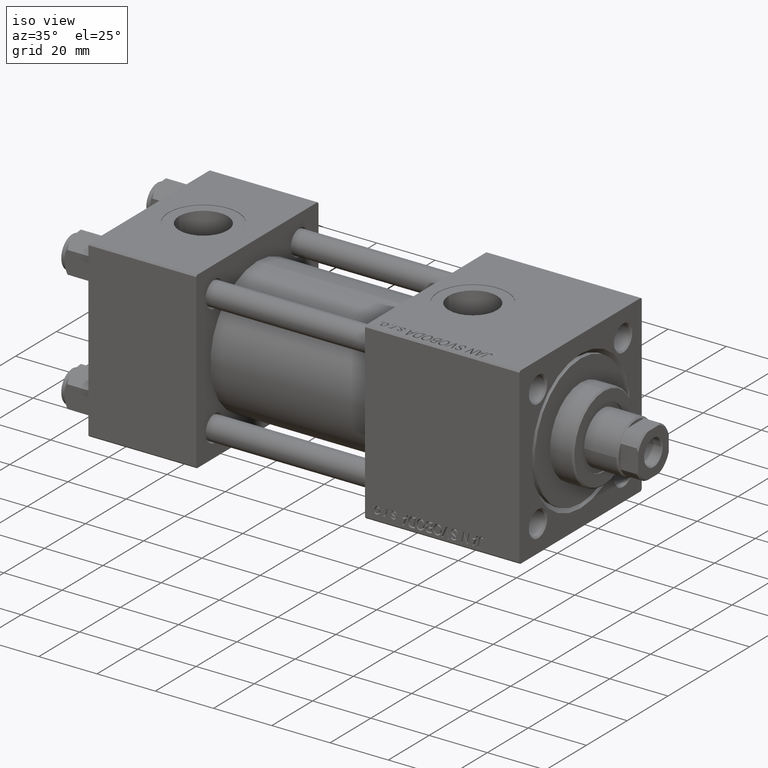
[diagram: clean part render]
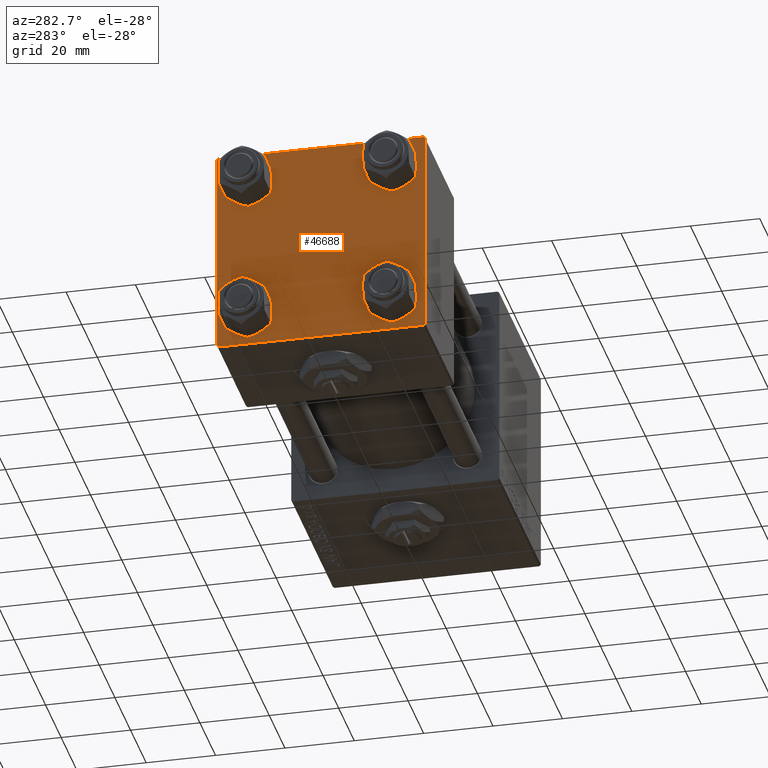
[diagram: tour spotlight — one face highlighted and labeled with its STEP entity id]
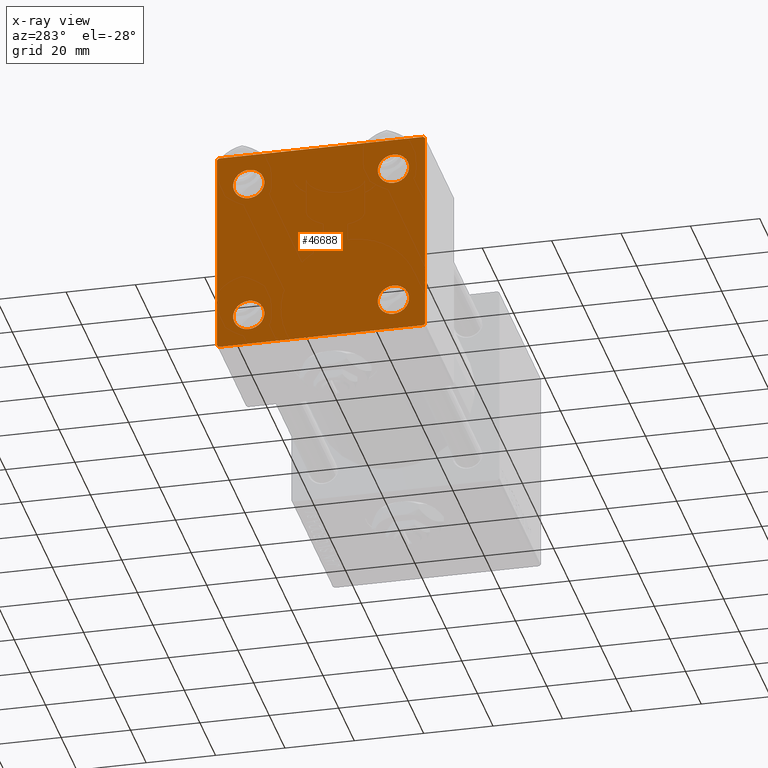
[diagram: x-ray of the same camera — body ghosted, this tour face saturated]
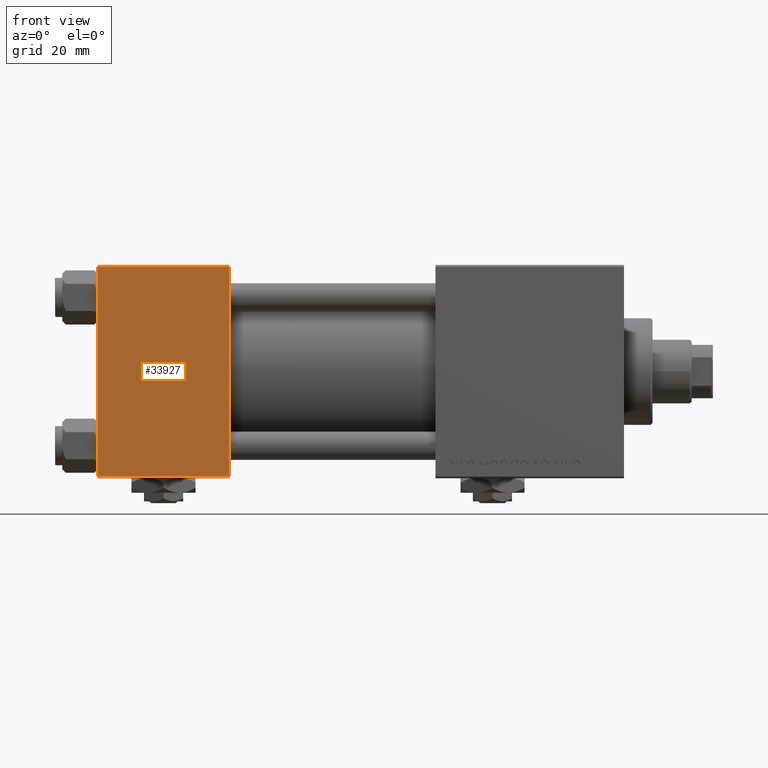
[diagram: tour spotlight — one face highlighted and labeled with its STEP entity id]
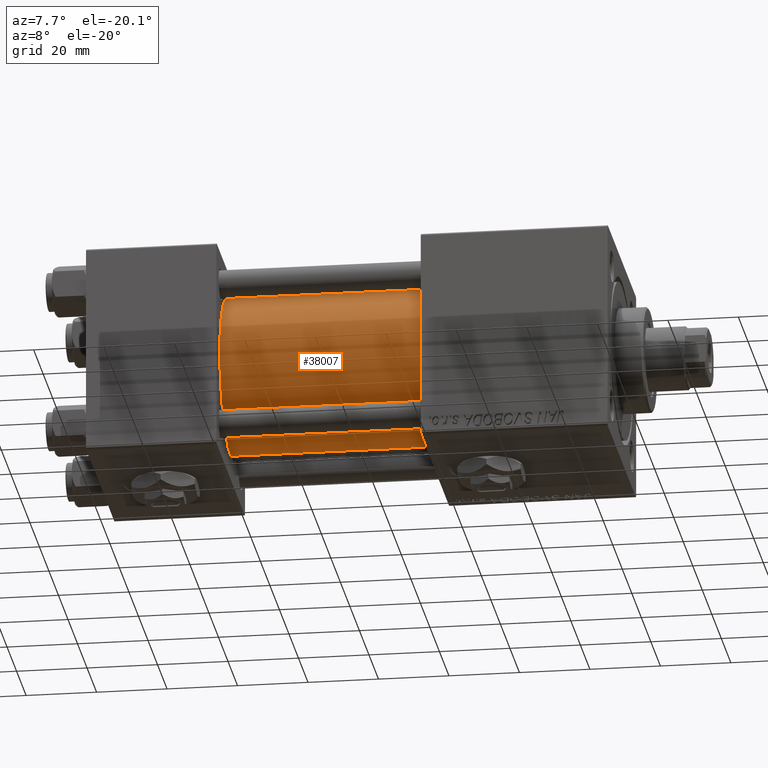
[diagram: tour spotlight — one face highlighted and labeled with its STEP entity id]
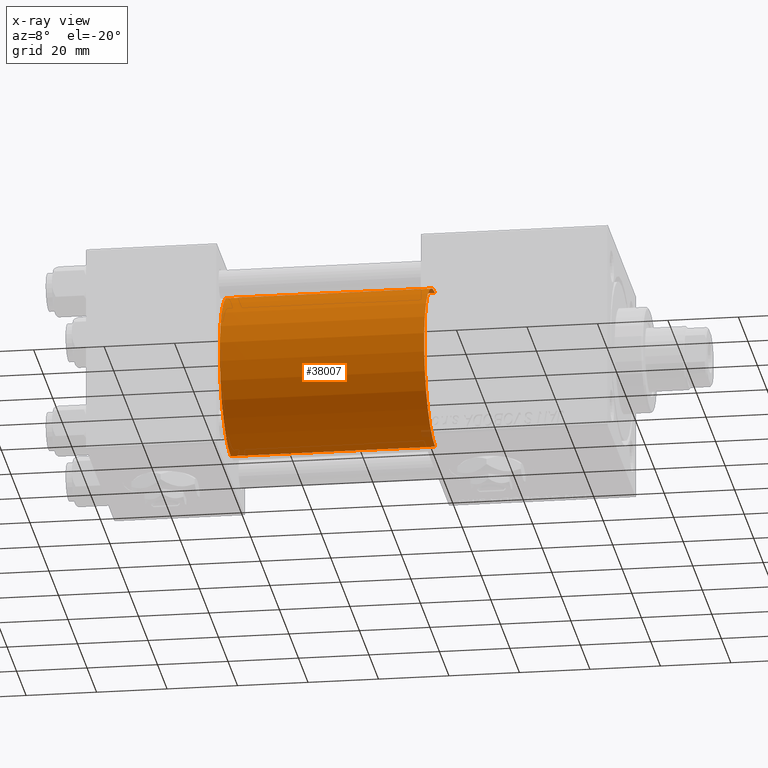
[diagram: x-ray of the same camera — body ghosted, this tour face saturated]
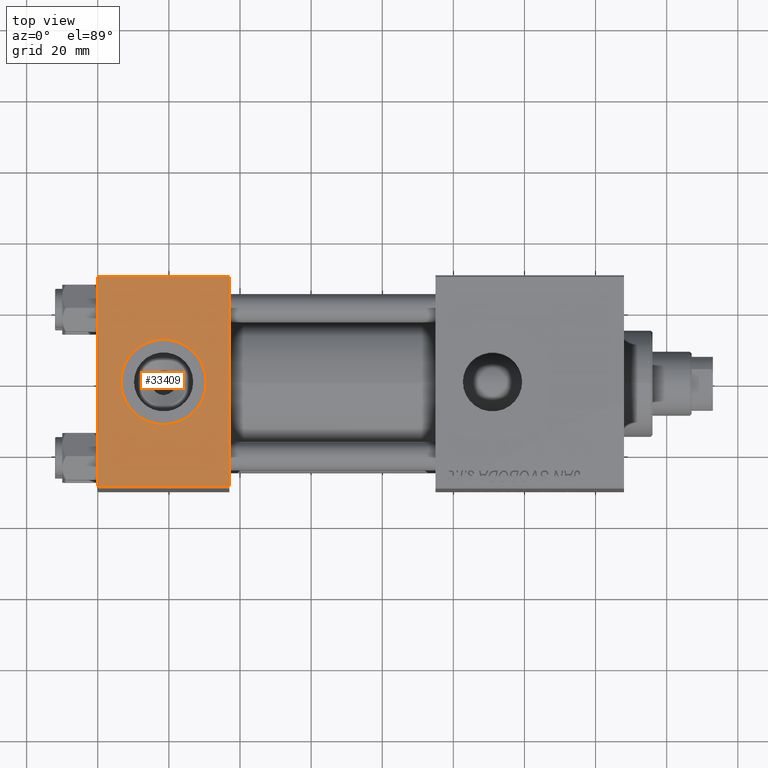
[diagram: tour spotlight — one face highlighted and labeled with its STEP entity id]
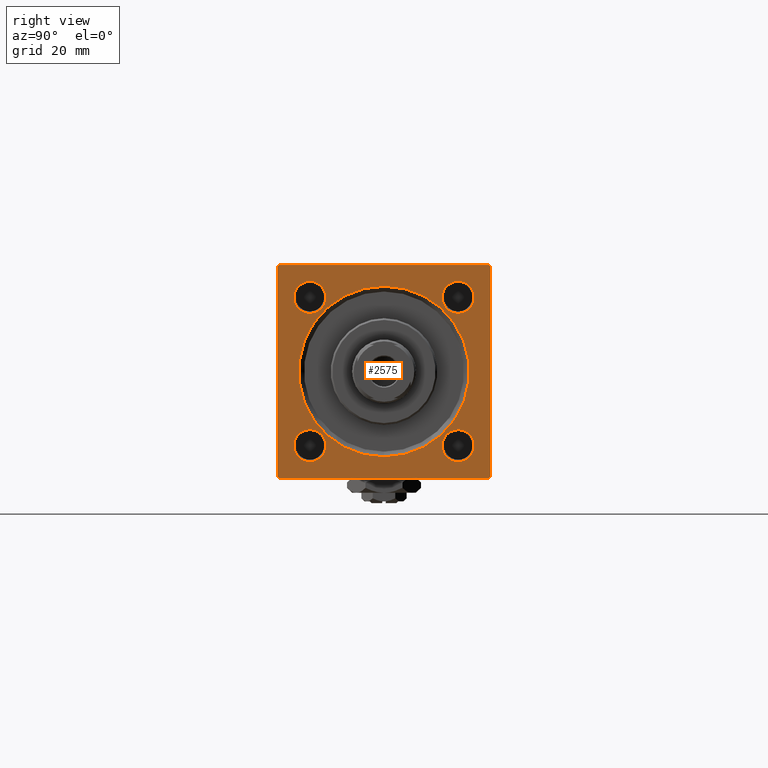
[diagram: tour spotlight — one face highlighted and labeled with its STEP entity id]
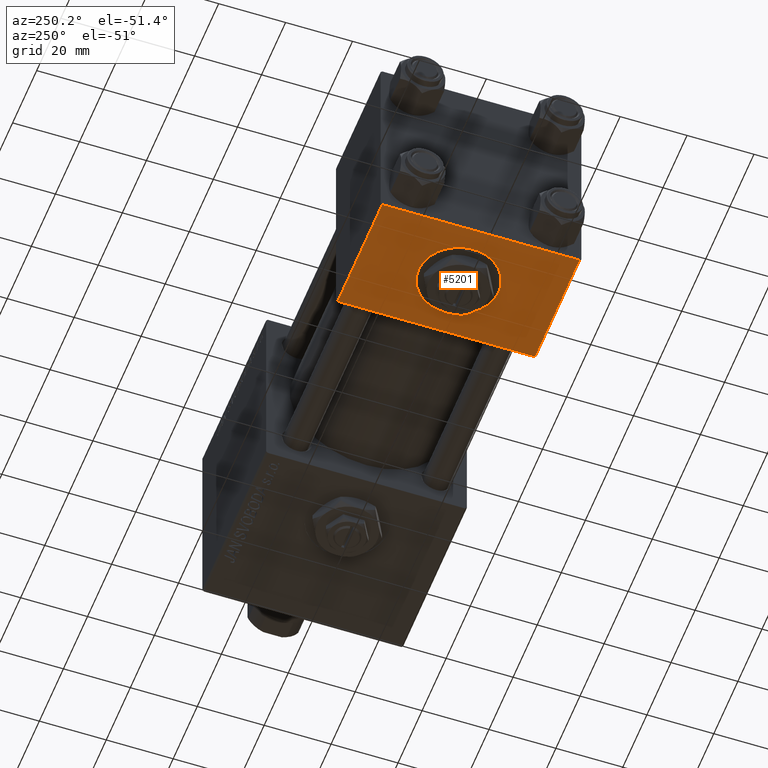
[diagram: tour spotlight — one face highlighted and labeled with its STEP entity id]
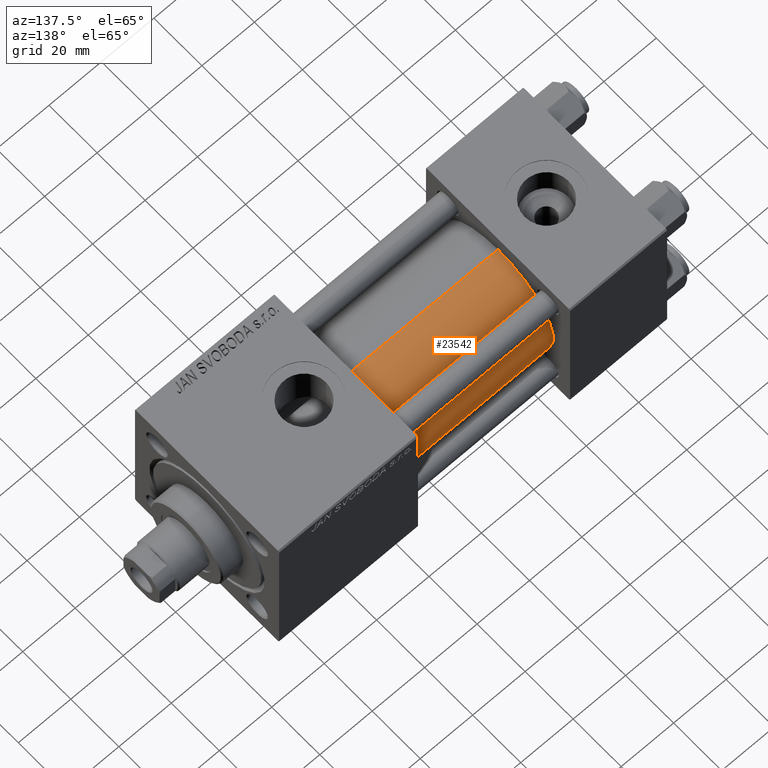
[diagram: tour spotlight — one face highlighted and labeled with its STEP entity id]
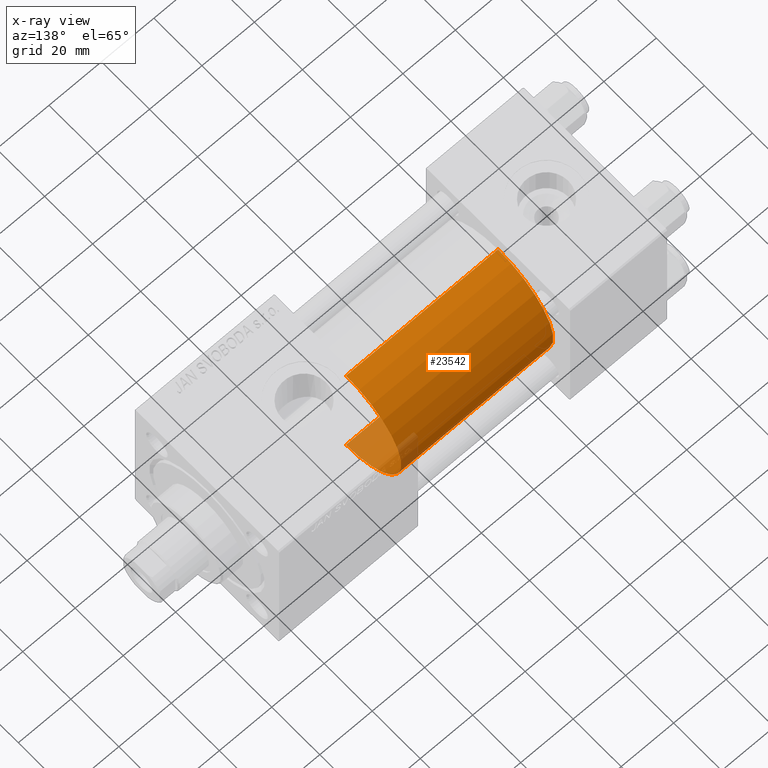
[diagram: x-ray of the same camera — body ghosted, this tour face saturated]
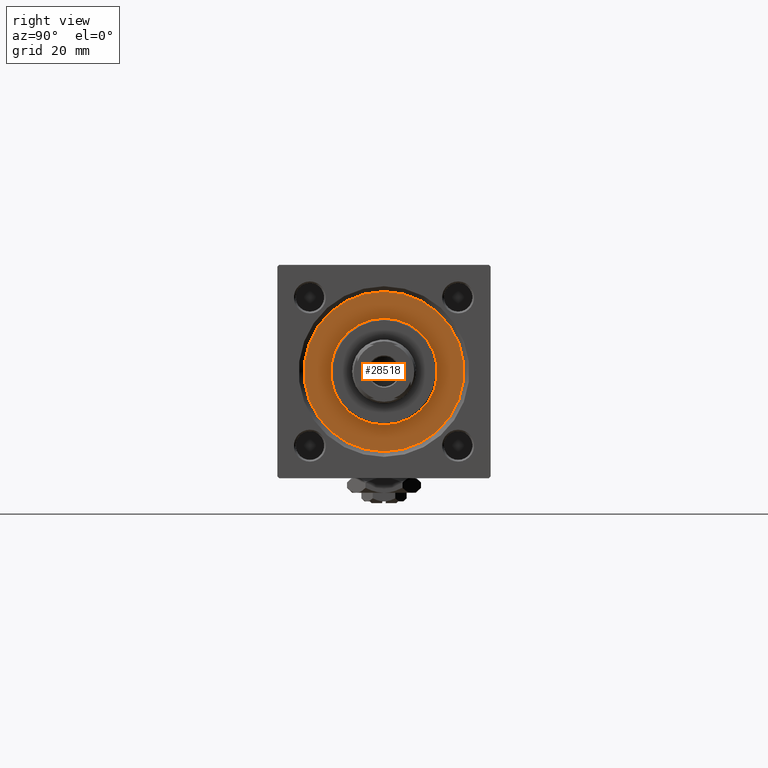
[diagram: tour spotlight — one face highlighted and labeled with its STEP entity id]
A machine part: a face-by-face anatomy tour. The part has 1250 B-rep faces; the first image is the clean iso view, then the 8 largest visible faces are spotlighted one at a time (largest first), each with its STEP entity span.

Face 1 — auxiliary view, entity #46688. An x-ray twin of the same camera follows (body ghosted, this face saturated) — the face is partly hidden behind the body. In plain terms, the highlighted planar face has unit normal (-1, 0, 0).
Definition (entity closure, byte-faithful):
#540 = DIRECTION ( 'NONE',  ( -0.000000000000000000, -0.7071067811865574537, -0.7071067811865376918 ) ) ;
#557 = CARTESIAN_POINT ( 'NONE',  ( 0.000000000000000000, -20.84999999999999076, -25.35000000000002274 ) ) ;
#825 = CARTESIAN_POINT ( 'NONE',  ( 0.000000000000000000, 20.84999999999999787, 25.35000000000001918 ) ) ;
#861 = DIRECTION ( 'NONE',  ( 0.000000000000000000, 0.000000000000000000, 1.000000000000000000 ) ) ;
#1670 = AXIS2_PLACEMENT_3D ( 'NONE', #34397, #51579, #31476 ) ;
#1897 = CIRCLE ( 'NONE', #15408, 4.500000000000017764 ) ;
#3165 = CARTESIAN_POINT ( 'NONE',  ( 0.000000000000000000, -29.50000000000000000, -30.00000000000000711 ) ) ;
#3191 = CIRCLE ( 'NONE', #52164, 4.500000000000017764 ) ;
#4495 = LINE ( 'NONE', #32247, #22229 ) ;
#5049 = DIRECTION ( 'NONE',  ( 1.000000000000000000, -0.000000000000000000, 0.000000000000000000 ) ) ;
#5383 = VERTEX_POINT ( 'NONE', #6971 ) ;
#5805 = EDGE_CURVE ( 'NONE', #8570, #5383, #52173, .T. ) ;
#6073 = CARTESIAN_POINT ( 'NONE',  ( 0.000000000000000000, -30.00000000000000000, 29.49999999999999289 ) ) ;
#6908 = VECTOR ( 'NONE', #19586, 1000.000000000000000 ) ;
#6971 = CARTESIAN_POINT ( 'NONE',  ( 0.000000000000000000, -20.84999999999999076, 25.35000000000002274 ) ) ;
#7129 = DIRECTION ( 'NONE',  ( 1.000000000000000000, -0.000000000000000000, 0.000000000000000000 ) ) ;
#7686 = VERTEX_POINT ( 'NONE', #51403 ) ;
#7718 = DIRECTION ( 'NONE',  ( 0.000000000000000000, 0.7071067811865474617, -0.7071067811865474617 ) ) ;
#7966 = DIRECTION ( 'NONE',  ( 0.000000000000000000, 0.000000000000000000, 1.000000000000000000 ) ) ;
#8241 = DIRECTION ( 'NONE',  ( 0.000000000000000000, 0.000000000000000000, 1.000000000000000000 ) ) ;
#8282 = CARTESIAN_POINT ( 'NONE',  ( 0.000000000000000000, -29.75000000000001066, -29.75000000000001066 ) ) ;
#8570 = VERTEX_POINT ( 'NONE', #34829 ) ;
#8690 = ORIENTED_EDGE ( 'NONE', *, *, #37323, .T. ) ;
#8923 = DIRECTION ( 'NONE',  ( 1.000000000000000000, -0.000000000000000000, 0.000000000000000000 ) ) ;
#9505 = EDGE_LOOP ( 'NONE', ( #36386, #37430 ) ) ;
#9508 = EDGE_CURVE ( 'NONE', #20912, #42500, #3191, .T. ) ;
#9781 = FACE_BOUND ( 'NONE', #12939, .T. ) ;
#10041 = CARTESIAN_POINT ( 'NONE',  ( 0.000000000000000000, 0.000000000000000000, 0.000000000000000000 ) ) ;
#10576 = PLANE ( 'NONE',  #35738 ) ;
#11091 = DIRECTION ( 'NONE',  ( 0.000000000000000000, 0.000000000000000000, 1.000000000000000000 ) ) ;
#11101 = EDGE_CURVE ( 'NONE', #31683, #22784, #26155, .T. ) ;
#11957 = EDGE_LOOP ( 'NONE', ( #13890, #36251, #43066, #32645, #44321, #39049, #35736, #42757 ) ) ;
#12215 = CARTESIAN_POINT ( 'NONE',  ( 0.000000000000000000, -20.84999999999999076, -20.85000000000000497 ) ) ;
#12939 = EDGE_LOOP ( 'NONE', ( #27495, #13924 ) ) ;
#13151 = DIRECTION ( 'NONE',  ( 1.000000000000000000, -0.000000000000000000, 0.000000000000000000 ) ) ;
#13890 = ORIENTED_EDGE ( 'NONE', *, *, #39130, .T. ) ;
#13924 = ORIENTED_EDGE ( 'NONE', *, *, #5805, .T. ) ;
#14239 = LINE ( 'NONE', #45707, #43086 ) ;
#14603 = EDGE_LOOP ( 'NONE', ( #40669, #18108 ) ) ;
#15191 = VERTEX_POINT ( 'NONE', #49540 ) ;
#15408 = AXIS2_PLACEMENT_3D ( 'NONE', #20683, #48969, #861 ) ;
#16278 = VERTEX_POINT ( 'NONE', #42595 ) ;
#16422 = LINE ( 'NONE', #28322, #38262 ) ;
#16761 = CIRCLE ( 'NONE', #43780, 4.500000000000017764 ) ;
#17696 = FACE_BOUND ( 'NONE', #47383, .T. ) ;
#17733 = AXIS2_PLACEMENT_3D ( 'NONE', #45383, #13151, #50135 ) ;
#17772 = CIRCLE ( 'NONE', #17733, 4.500000000000017764 ) ;
#18108 = ORIENTED_EDGE ( 'NONE', *, *, #9508, .T. ) ;
#18995 = LINE ( 'NONE', #30379, #40904 ) ;
#19586 = DIRECTION ( 'NONE',  ( 0.000000000000000000, 0.000000000000000000, -1.000000000000000000 ) ) ;
#19905 = EDGE_CURVE ( 'NONE', #38172, #37153, #45960, .T. ) ;
#20101 = CARTESIAN_POINT ( 'NONE',  ( 0.000000000000000000, 20.84999999999999787, -16.34999999999998366 ) ) ;
#20152 = EDGE_CURVE ( 'NONE', #37991, #43113, #1897, .T. ) ;
#20683 = CARTESIAN_POINT ( 'NONE',  ( 0.000000000000000000, -20.84999999999999076, -20.85000000000000497 ) ) ;
#20912 = VERTEX_POINT ( 'NONE', #31292 ) ;
#21705 = VERTEX_POINT ( 'NONE', #6073 ) ;
#21929 = CARTESIAN_POINT ( 'NONE',  ( 0.000000000000000000, 29.99999999999999289, -30.00000000000000000 ) ) ;
#22229 = VECTOR ( 'NONE', #540, 999.9999999999998863 ) ;
#22440 = DIRECTION ( 'NONE',  ( 0.000000000000000000, 0.000000000000000000, -1.000000000000000000 ) ) ;
#22784 = VERTEX_POINT ( 'NONE', #3165 ) ;
#22973 = DIRECTION ( 'NONE',  ( 0.000000000000000000, -1.000000000000000000, -1.156482317317871725E-16 ) ) ;
#25284 = AXIS2_PLACEMENT_3D ( 'NONE', #43062, #7129, #11091 ) ;
#25636 = DIRECTION ( 'NONE',  ( -1.000000000000000000, 0.000000000000000000, -0.000000000000000000 ) ) ;
#25654 = CARTESIAN_POINT ( 'NONE',  ( 0.000000000000000000, 20.84999999999999787, 20.85000000000000142 ) ) ;
#26155 = LINE ( 'NONE', #21929, #27716 ) ;
#26956 = CIRCLE ( 'NONE', #25284, 4.500000000000017764 ) ;
#27495 = ORIENTED_EDGE ( 'NONE', *, *, #36919, .T. ) ;
#27526 = VERTEX_POINT ( 'NONE', #825 ) ;
#27716 = VECTOR ( 'NONE', #22973, 1000.000000000000000 ) ;
#27717 = EDGE_CURVE ( 'NONE', #27526, #50629, #45928, .T. ) ;
#28322 = CARTESIAN_POINT ( 'NONE',  ( 0.000000000000000000, 29.74999999999999645, 29.74999999999999645 ) ) ;
#28331 = DIRECTION ( 'NONE',  ( 1.000000000000000000, -0.000000000000000000, 0.000000000000000000 ) ) ;
#28382 = CARTESIAN_POINT ( 'NONE',  ( 0.000000000000000000, -29.49999999999998579, 29.99999999999999289 ) ) ;
#30379 = CARTESIAN_POINT ( 'NONE',  ( -0.000000000000000000, -29.74999999999999645, 29.74999999999999645 ) ) ;
#31161 = DIRECTION ( 'NONE',  ( -0.000000000000000000, 0.7071067811865474617, 0.7071067811865474617 ) ) ;
#31292 = CARTESIAN_POINT ( 'NONE',  ( 0.000000000000000000, 20.84999999999999787, -25.35000000000001918 ) ) ;
#31374 = EDGE_CURVE ( 'NONE', #43113, #37991, #16761, .T. ) ;
#31476 = DIRECTION ( 'NONE',  ( 0.000000000000000000, 0.000000000000000000, 1.000000000000000000 ) ) ;
#31683 = VERTEX_POINT ( 'NONE', #49590 ) ;
#32247 = CARTESIAN_POINT ( 'NONE',  ( 0.000000000000000000, 29.74999999999957723, -29.75000000000040501 ) ) ;
#32645 = ORIENTED_EDGE ( 'NONE', *, *, #47466, .T. ) ;
#34324 = DIRECTION ( 'NONE',  ( 0.000000000000000000, -1.000000000000000000, -1.156482317317871725E-16 ) ) ;
#34397 = CARTESIAN_POINT ( 'NONE',  ( 0.000000000000000000, 20.84999999999999787, 20.85000000000000142 ) ) ;
#34829 = CARTESIAN_POINT ( 'NONE',  ( 0.000000000000000000, -20.84999999999999076, 16.34999999999998721 ) ) ;
#35736 = ORIENTED_EDGE ( 'NONE', *, *, #19905, .F. ) ;
#35738 = AXIS2_PLACEMENT_3D ( 'NONE', #10041, #25636, #51002 ) ;
#35969 = CARTESIAN_POINT ( 'NONE',  ( 0.000000000000000000, -20.84999999999999076, 20.85000000000000497 ) ) ;
#36251 = ORIENTED_EDGE ( 'NONE', *, *, #45805, .T. ) ;
#36386 = ORIENTED_EDGE ( 'NONE', *, *, #20152, .T. ) ;
#36406 = DIRECTION ( 'NONE',  ( 0.000000000000000000, 0.000000000000000000, 1.000000000000000000 ) ) ;
#36919 = EDGE_CURVE ( 'NONE', #5383, #8570, #26956, .T. ) ;
#37078 = DIRECTION ( 'NONE',  ( 0.000000000000000000, -0.7071067811865474617, 0.7071067811865474617 ) ) ;
#37153 = VERTEX_POINT ( 'NONE', #28382 ) ;
#37245 = CARTESIAN_POINT ( 'NONE',  ( 0.000000000000000000, 29.49999999999999289, 30.00000000000000000 ) ) ;
#37323 = EDGE_CURVE ( 'NONE', #50629, #27526, #44707, .T. ) ;
#37430 = ORIENTED_EDGE ( 'NONE', *, *, #31374, .T. ) ;
#37810 = ORIENTED_EDGE ( 'NONE', *, *, #27717, .T. ) ;
#37991 = VERTEX_POINT ( 'NONE', #38864 ) ;
#38172 = VERTEX_POINT ( 'NONE', #37245 ) ;
#38262 = VECTOR ( 'NONE', #7718, 1000.000000000000114 ) ;
#38864 = CARTESIAN_POINT ( 'NONE',  ( 0.000000000000000000, -20.84999999999999076, -16.34999999999998721 ) ) ;
#39049 = ORIENTED_EDGE ( 'NONE', *, *, #51510, .T. ) ;
#39130 = EDGE_CURVE ( 'NONE', #16278, #7686, #14239, .T. ) ;
#39390 = EDGE_CURVE ( 'NONE', #42500, #20912, #17772, .T. ) ;
#40370 = CARTESIAN_POINT ( 'NONE',  ( 0.000000000000000000, 20.84999999999999787, -20.85000000000000142 ) ) ;
#40478 = CARTESIAN_POINT ( 'NONE',  ( 0.000000000000000000, 20.84999999999999787, 16.34999999999998366 ) ) ;
#40669 = ORIENTED_EDGE ( 'NONE', *, *, #39390, .T. ) ;
#40904 = VECTOR ( 'NONE', #31161, 1000.000000000000114 ) ;
#41187 = AXIS2_PLACEMENT_3D ( 'NONE', #35969, #44155, #7966 ) ;
#41248 = DIRECTION ( 'NONE',  ( 0.000000000000000000, 0.000000000000000000, 1.000000000000000000 ) ) ;
#41705 = AXIS2_PLACEMENT_3D ( 'NONE', #25654, #5049, #41248 ) ;
#42342 = EDGE_CURVE ( 'NONE', #21705, #15191, #52098, .T. ) ;
#42500 = VERTEX_POINT ( 'NONE', #20101 ) ;
#42541 = FACE_BOUND ( 'NONE', #14603, .T. ) ;
#42595 = CARTESIAN_POINT ( 'NONE',  ( 0.000000000000000000, 29.99999999999999289, 29.50000000000000000 ) ) ;
#42757 = ORIENTED_EDGE ( 'NONE', *, *, #49341, .T. ) ;
#43062 = CARTESIAN_POINT ( 'NONE',  ( 0.000000000000000000, -20.84999999999999076, 20.85000000000000497 ) ) ;
#43066 = ORIENTED_EDGE ( 'NONE', *, *, #11101, .T. ) ;
#43086 = VECTOR ( 'NONE', #22440, 1000.000000000000000 ) ;
#43113 = VERTEX_POINT ( 'NONE', #557 ) ;
#43780 = AXIS2_PLACEMENT_3D ( 'NONE', #12215, #28331, #8241 ) ;
#44155 = DIRECTION ( 'NONE',  ( 1.000000000000000000, -0.000000000000000000, 0.000000000000000000 ) ) ;
#44321 = ORIENTED_EDGE ( 'NONE', *, *, #42342, .F. ) ;
#44475 = LINE ( 'NONE', #8282, #46761 ) ;
#44707 = CIRCLE ( 'NONE', #1670, 4.500000000000017764 ) ;
#45383 = CARTESIAN_POINT ( 'NONE',  ( 0.000000000000000000, 20.84999999999999787, -20.85000000000000142 ) ) ;
#45707 = CARTESIAN_POINT ( 'NONE',  ( 0.000000000000000000, 29.99999999999999289, 30.00000000000000000 ) ) ;
#45805 = EDGE_CURVE ( 'NONE', #7686, #31683, #4495, .T. ) ;
#45928 = CIRCLE ( 'NONE', #41705, 4.500000000000017764 ) ;
#45960 = LINE ( 'NONE', #49928, #48274 ) ;
#46688 = ADVANCED_FACE ( 'NONE', ( #9781, #46771, #42541, #17696, #49952 ), #10576, .T. ) ;
#46761 = VECTOR ( 'NONE', #37078, 1000.000000000000114 ) ;
#46771 = FACE_BOUND ( 'NONE', #9505, .T. ) ;
#47383 = EDGE_LOOP ( 'NONE', ( #37810, #8690 ) ) ;
#47466 = EDGE_CURVE ( 'NONE', #22784, #15191, #44475, .T. ) ;
#48274 = VECTOR ( 'NONE', #34324, 1000.000000000000000 ) ;
#48969 = DIRECTION ( 'NONE',  ( 1.000000000000000000, -0.000000000000000000, 0.000000000000000000 ) ) ;
#49341 = EDGE_CURVE ( 'NONE', #38172, #16278, #16422, .T. ) ;
#49540 = CARTESIAN_POINT ( 'NONE',  ( 0.000000000000000000, -30.00000000000000000, -29.50000000000001776 ) ) ;
#49590 = CARTESIAN_POINT ( 'NONE',  ( 0.000000000000000000, 29.49999999999997868, -30.00000000000000000 ) ) ;
#49928 = CARTESIAN_POINT ( 'NONE',  ( 0.000000000000000000, 29.99999999999999289, 30.00000000000000000 ) ) ;
#49952 = FACE_OUTER_BOUND ( 'NONE', #11957, .T. ) ;
#50135 = DIRECTION ( 'NONE',  ( 0.000000000000000000, 0.000000000000000000, 1.000000000000000000 ) ) ;
#50629 = VERTEX_POINT ( 'NONE', #40478 ) ;
#51002 = DIRECTION ( 'NONE',  ( -0.000000000000000000, 0.000000000000000000, 1.000000000000000000 ) ) ;
#51403 = CARTESIAN_POINT ( 'NONE',  ( 0.000000000000000000, 29.99999999999999289, -29.50000000000000000 ) ) ;
#51510 = EDGE_CURVE ( 'NONE', #21705, #37153, #18995, .T. ) ;
#51579 = DIRECTION ( 'NONE',  ( 1.000000000000000000, -0.000000000000000000, 0.000000000000000000 ) ) ;
#51584 = CARTESIAN_POINT ( 'NONE',  ( 0.000000000000000000, -30.00000000000000000, 29.99999999999999289 ) ) ;
#52098 = LINE ( 'NONE', #51584, #6908 ) ;
#52164 = AXIS2_PLACEMENT_3D ( 'NONE', #40370, #8923, #36406 ) ;
#52173 = CIRCLE ( 'NONE', #41187, 4.500000000000017764 ) ;

Face 2 — front view, entity #33927. In plain terms, the highlighted planar face has unit normal (0, 1, 0).
Definition (entity closure, byte-faithful):
#1931 = VECTOR ( 'NONE', #33778, 1000.000000000000000 ) ;
#2627 = DIRECTION ( 'NONE',  ( 0.000000000000000000, -0.000000000000000000, 1.000000000000000000 ) ) ;
#4392 = EDGE_CURVE ( 'NONE', #15191, #30219, #22111, .T. ) ;
#4568 = CARTESIAN_POINT ( 'NONE',  ( 37.00000000000000000, -30.00000000000000000, 29.49999999999999289 ) ) ;
#5355 = ORIENTED_EDGE ( 'NONE', *, *, #20072, .T. ) ;
#6073 = CARTESIAN_POINT ( 'NONE',  ( 0.000000000000000000, -30.00000000000000000, 29.49999999999999289 ) ) ;
#6908 = VECTOR ( 'NONE', #19586, 1000.000000000000000 ) ;
#7111 = PLANE ( 'NONE',  #32083 ) ;
#14176 = CARTESIAN_POINT ( 'NONE',  ( 37.00000000000000000, -30.00000000000000000, -29.50000000000001776 ) ) ;
#14638 = ORIENTED_EDGE ( 'NONE', *, *, #42342, .T. ) ;
#15191 = VERTEX_POINT ( 'NONE', #49540 ) ;
#16715 = LINE ( 'NONE', #4568, #51686 ) ;
#17654 = CARTESIAN_POINT ( 'NONE',  ( 37.00000000000000000, -30.00000000000000000, 29.99999999999999289 ) ) ;
#18998 = DIRECTION ( 'NONE',  ( -0.000000000000000000, 1.000000000000000000, 0.000000000000000000 ) ) ;
#19586 = DIRECTION ( 'NONE',  ( 0.000000000000000000, 0.000000000000000000, -1.000000000000000000 ) ) ;
#20072 = EDGE_CURVE ( 'NONE', #48075, #21705, #16715, .T. ) ;
#21705 = VERTEX_POINT ( 'NONE', #6073 ) ;
#22111 = LINE ( 'NONE', #14176, #25074 ) ;
#22707 = CARTESIAN_POINT ( 'NONE',  ( 37.00000000000000000, -30.00000000000000000, 29.99999999999999289 ) ) ;
#25074 = VECTOR ( 'NONE', #42718, 1000.000000000000000 ) ;
#25907 = CARTESIAN_POINT ( 'NONE',  ( 37.00000000000000000, -30.00000000000000000, -29.50000000000001776 ) ) ;
#29160 = CARTESIAN_POINT ( 'NONE',  ( 37.00000000000000000, -30.00000000000000000, 29.49999999999999289 ) ) ;
#30219 = VERTEX_POINT ( 'NONE', #25907 ) ;
#31684 = FACE_OUTER_BOUND ( 'NONE', #37997, .T. ) ;
#32083 = AXIS2_PLACEMENT_3D ( 'NONE', #22707, #18998, #2627 ) ;
#32241 = ORIENTED_EDGE ( 'NONE', *, *, #4392, .T. ) ;
#32288 = ORIENTED_EDGE ( 'NONE', *, *, #44354, .F. ) ;
#33778 = DIRECTION ( 'NONE',  ( 0.000000000000000000, 0.000000000000000000, -1.000000000000000000 ) ) ;
#33927 = ADVANCED_FACE ( 'NONE', ( #31684 ), #7111, .F. ) ;
#37997 = EDGE_LOOP ( 'NONE', ( #14638, #32241, #32288, #5355 ) ) ;
#42342 = EDGE_CURVE ( 'NONE', #21705, #15191, #52098, .T. ) ;
#42718 = DIRECTION ( 'NONE',  ( 1.000000000000000000, 0.000000000000000000, 0.000000000000000000 ) ) ;
#44354 = EDGE_CURVE ( 'NONE', #48075, #30219, #46458, .T. ) ;
#45516 = DIRECTION ( 'NONE',  ( -1.000000000000000000, 0.000000000000000000, 0.000000000000000000 ) ) ;
#46458 = LINE ( 'NONE', #17654, #1931 ) ;
#48075 = VERTEX_POINT ( 'NONE', #29160 ) ;
#49540 = CARTESIAN_POINT ( 'NONE',  ( 0.000000000000000000, -30.00000000000000000, -29.50000000000001776 ) ) ;
#51584 = CARTESIAN_POINT ( 'NONE',  ( 0.000000000000000000, -30.00000000000000000, 29.99999999999999289 ) ) ;
#51686 = VECTOR ( 'NONE', #45516, 1000.000000000000000 ) ;
#52098 = LINE ( 'NONE', #51584, #6908 ) ;

Face 3 — auxiliary view, entity #38007. An x-ray twin of the same camera follows (body ghosted, this face saturated) — the face is partly hidden behind the body. In plain terms, the highlighted cylindrical surface (partial cylindrical patch) has radius 23 mm, axis along (-1, -0, -0).
Definition (entity closure, byte-faithful):
#22 = CIRCLE ( 'NONE', #20273, 23.00000000000000000 ) ;
#356 = VERTEX_POINT ( 'NONE', #34967 ) ;
#714 = LINE ( 'NONE', #32955, #16764 ) ;
#2664 = DIRECTION ( 'NONE',  ( -1.000000000000000000, -0.000000000000000000, -0.000000000000000000 ) ) ;
#2885 = EDGE_LOOP ( 'NONE', ( #46599, #40748, #23913, #51182 ) ) ;
#3447 = CARTESIAN_POINT ( 'NONE',  ( 95.00000000000000000, -2.602085213965210642E-15, 0.000000000000000000 ) ) ;
#4763 = DIRECTION ( 'NONE',  ( 0.000000000000000000, 0.000000000000000000, 1.000000000000000000 ) ) ;
#5134 = EDGE_CURVE ( 'NONE', #356, #31885, #26345, .T. ) ;
#10856 = CYLINDRICAL_SURFACE ( 'NONE', #32081, 23.00000000000000000 ) ;
#11978 = EDGE_CURVE ( 'NONE', #22358, #49975, #714, .T. ) ;
#16764 = VECTOR ( 'NONE', #49082, 1000.000000000000000 ) ;
#18771 = DIRECTION ( 'NONE',  ( 0.000000000000000000, 0.000000000000000000, 1.000000000000000000 ) ) ;
#18808 = CARTESIAN_POINT ( 'NONE',  ( 95.00000000000000000, -2.602085213965210642E-15, 23.00000000000000000 ) ) ;
#20273 = AXIS2_PLACEMENT_3D ( 'NONE', #26684, #23236, #50467 ) ;
#22358 = VERTEX_POINT ( 'NONE', #18808 ) ;
#23236 = DIRECTION ( 'NONE',  ( 1.000000000000000000, 0.000000000000000000, 0.000000000000000000 ) ) ;
#23898 = AXIS2_PLACEMENT_3D ( 'NONE', #40966, #44924, #4763 ) ;
#23913 = ORIENTED_EDGE ( 'NONE', *, *, #11978, .T. ) ;
#26345 = LINE ( 'NONE', #26861, #44496 ) ;
#26684 = CARTESIAN_POINT ( 'NONE',  ( 95.00000000000000000, -2.602085213965210642E-15, 0.000000000000000000 ) ) ;
#26861 = CARTESIAN_POINT ( 'NONE',  ( 95.00000000000000000, 2.146024240737012665E-16, -23.00000000000000000 ) ) ;
#31885 = VERTEX_POINT ( 'NONE', #34322 ) ;
#32081 = AXIS2_PLACEMENT_3D ( 'NONE', #3447, #2664, #18771 ) ;
#32955 = CARTESIAN_POINT ( 'NONE',  ( 95.00000000000000000, -2.602085213965210642E-15, 23.00000000000000000 ) ) ;
#34322 = CARTESIAN_POINT ( 'NONE',  ( 37.00000000000000000, 2.146024240737012665E-16, -23.00000000000000000 ) ) ;
#34786 = EDGE_CURVE ( 'NONE', #22358, #356, #22, .T. ) ;
#34967 = CARTESIAN_POINT ( 'NONE',  ( 95.00000000000000000, 2.146024240737012665E-16, -23.00000000000000000 ) ) ;
#38007 = ADVANCED_FACE ( 'NONE', ( #39651 ), #10856, .T. ) ;
#38268 = CIRCLE ( 'NONE', #23898, 23.00000000000000000 ) ;
#39651 = FACE_OUTER_BOUND ( 'NONE', #2885, .T. ) ;
#40748 = ORIENTED_EDGE ( 'NONE', *, *, #34786, .F. ) ;
#40966 = CARTESIAN_POINT ( 'NONE',  ( 37.00000000000000000, -2.602085213965210642E-15, 0.000000000000000000 ) ) ;
#42464 = DIRECTION ( 'NONE',  ( -1.000000000000000000, -0.000000000000000000, -0.000000000000000000 ) ) ;
#43005 = CARTESIAN_POINT ( 'NONE',  ( 37.00000000000000000, -2.602085213965210642E-15, 23.00000000000000000 ) ) ;
#44496 = VECTOR ( 'NONE', #42464, 1000.000000000000000 ) ;
#44924 = DIRECTION ( 'NONE',  ( 1.000000000000000000, -0.000000000000000000, 0.000000000000000000 ) ) ;
#45791 = EDGE_CURVE ( 'NONE', #49975, #31885, #38268, .T. ) ;
#46599 = ORIENTED_EDGE ( 'NONE', *, *, #5134, .F. ) ;
#49082 = DIRECTION ( 'NONE',  ( -1.000000000000000000, -0.000000000000000000, -0.000000000000000000 ) ) ;
#49975 = VERTEX_POINT ( 'NONE', #43005 ) ;
#50467 = DIRECTION ( 'NONE',  ( 0.000000000000000000, 0.000000000000000000, -1.000000000000000000 ) ) ;
#51182 = ORIENTED_EDGE ( 'NONE', *, *, #45791, .T. ) ;

Face 4 — top view, entity #33409. In plain terms, the highlighted planar face has unit normal (0, 0, -1).
Definition (entity closure, byte-faithful):
#1893 = VECTOR ( 'NONE', #25209, 1000.000000000000000 ) ;
#3919 = ORIENTED_EDGE ( 'NONE', *, *, #15435, .T. ) ;
#4821 = DIRECTION ( 'NONE',  ( 0.000000000000000000, 1.000000000000000000, 1.156482317317871725E-16 ) ) ;
#5037 = AXIS2_PLACEMENT_3D ( 'NONE', #12759, #16976, #4821 ) ;
#5596 = DIRECTION ( 'NONE',  ( 0.000000000000000000, 0.000000000000000000, 1.000000000000000000 ) ) ;
#8152 = CARTESIAN_POINT ( 'NONE',  ( 6.499999999999997335, -1.999870792976790833E-15, 29.99999999999999645 ) ) ;
#10388 = CARTESIAN_POINT ( 'NONE',  ( 37.00000000000000000, 29.99999999999999289, 30.00000000000000000 ) ) ;
#12759 = CARTESIAN_POINT ( 'NONE',  ( 37.00000000000000000, 29.99999999999999289, 30.00000000000000000 ) ) ;
#14036 = VERTEX_POINT ( 'NONE', #8152 ) ;
#15136 = CARTESIAN_POINT ( 'NONE',  ( 37.00000000000000000, -29.49999999999998579, 29.99999999999999289 ) ) ;
#15435 = EDGE_CURVE ( 'NONE', #37153, #19430, #44455, .T. ) ;
#16976 = DIRECTION ( 'NONE',  ( 0.000000000000000000, 1.156482317317871725E-16, -1.000000000000000000 ) ) ;
#17467 = EDGE_CURVE ( 'NONE', #47737, #14036, #33854, .T. ) ;
#18153 = ORIENTED_EDGE ( 'NONE', *, *, #27308, .F. ) ;
#19114 = FACE_BOUND ( 'NONE', #49263, .T. ) ;
#19430 = VERTEX_POINT ( 'NONE', #15136 ) ;
#19898 = DIRECTION ( 'NONE',  ( 1.000000000000000000, 0.000000000000000000, 0.000000000000000000 ) ) ;
#19905 = EDGE_CURVE ( 'NONE', #38172, #37153, #45960, .T. ) ;
#20148 = CARTESIAN_POINT ( 'NONE',  ( 37.00000000000000000, -29.50000000000000000, 29.99999999999999289 ) ) ;
#22295 = CARTESIAN_POINT ( 'NONE',  ( 0.000000000000000000, 29.49999999999999289, 30.00000000000000000 ) ) ;
#24110 = ORIENTED_EDGE ( 'NONE', *, *, #25924, .F. ) ;
#24851 = EDGE_CURVE ( 'NONE', #39565, #38172, #26263, .T. ) ;
#25209 = DIRECTION ( 'NONE',  ( -1.000000000000000000, 0.000000000000000000, 0.000000000000000000 ) ) ;
#25382 = ORIENTED_EDGE ( 'NONE', *, *, #19905, .T. ) ;
#25686 = DIRECTION ( 'NONE',  ( 1.000000000000000000, 0.000000000000000000, 0.000000000000000000 ) ) ;
#25924 = EDGE_CURVE ( 'NONE', #14036, #47737, #34000, .T. ) ;
#26263 = LINE ( 'NONE', #22295, #1893 ) ;
#26463 = VECTOR ( 'NONE', #29428, 1000.000000000000000 ) ;
#27308 = EDGE_CURVE ( 'NONE', #39565, #19430, #38123, .T. ) ;
#28382 = CARTESIAN_POINT ( 'NONE',  ( 0.000000000000000000, -29.49999999999998579, 29.99999999999999289 ) ) ;
#29428 = DIRECTION ( 'NONE',  ( 0.000000000000000000, -1.000000000000000000, -1.156482317317871725E-16 ) ) ;
#29658 = CARTESIAN_POINT ( 'NONE',  ( 18.50000000000000000, -3.469446951953614978E-15, 29.99999999999999645 ) ) ;
#33374 = CARTESIAN_POINT ( 'NONE',  ( 18.50000000000000000, -3.469446951953614978E-15, 29.99999999999999645 ) ) ;
#33409 = ADVANCED_FACE ( 'NONE', ( #19114, #35229 ), #47397, .F. ) ;
#33854 = CIRCLE ( 'NONE', #44791, 12.00000000000000000 ) ;
#34000 = CIRCLE ( 'NONE', #43319, 12.00000000000000000 ) ;
#34324 = DIRECTION ( 'NONE',  ( 0.000000000000000000, -1.000000000000000000, -1.156482317317871725E-16 ) ) ;
#35229 = FACE_OUTER_BOUND ( 'NONE', #36237, .T. ) ;
#36237 = EDGE_LOOP ( 'NONE', ( #25382, #3919, #18153, #38323 ) ) ;
#36813 = DIRECTION ( 'NONE',  ( 0.000000000000000000, 0.000000000000000000, 1.000000000000000000 ) ) ;
#37153 = VERTEX_POINT ( 'NONE', #28382 ) ;
#37245 = CARTESIAN_POINT ( 'NONE',  ( 0.000000000000000000, 29.49999999999999289, 30.00000000000000000 ) ) ;
#38123 = LINE ( 'NONE', #10388, #26463 ) ;
#38172 = VERTEX_POINT ( 'NONE', #37245 ) ;
#38323 = ORIENTED_EDGE ( 'NONE', *, *, #24851, .T. ) ;
#38381 = CARTESIAN_POINT ( 'NONE',  ( 30.50000000000000000, -3.469446951953614978E-15, 29.99999999999999645 ) ) ;
#39565 = VERTEX_POINT ( 'NONE', #41094 ) ;
#41094 = CARTESIAN_POINT ( 'NONE',  ( 37.00000000000000000, 29.49999999999999289, 30.00000000000000000 ) ) ;
#43319 = AXIS2_PLACEMENT_3D ( 'NONE', #29658, #5596, #25686 ) ;
#44455 = LINE ( 'NONE', #20148, #50658 ) ;
#44791 = AXIS2_PLACEMENT_3D ( 'NONE', #33374, #36813, #49239 ) ;
#45960 = LINE ( 'NONE', #49928, #48274 ) ;
#47397 = PLANE ( 'NONE',  #5037 ) ;
#47737 = VERTEX_POINT ( 'NONE', #38381 ) ;
#47746 = ORIENTED_EDGE ( 'NONE', *, *, #17467, .F. ) ;
#48274 = VECTOR ( 'NONE', #34324, 1000.000000000000000 ) ;
#49239 = DIRECTION ( 'NONE',  ( 1.000000000000000000, 0.000000000000000000, 0.000000000000000000 ) ) ;
#49263 = EDGE_LOOP ( 'NONE', ( #47746, #24110 ) ) ;
#49928 = CARTESIAN_POINT ( 'NONE',  ( 0.000000000000000000, 29.99999999999999289, 30.00000000000000000 ) ) ;
#50658 = VECTOR ( 'NONE', #19898, 1000.000000000000000 ) ;

Face 5 — right view, entity #2575. In plain terms, the highlighted planar face has unit normal (-1, 0, 0).
Definition (entity closure, byte-faithful):
#386 = ORIENTED_EDGE ( 'NONE', *, *, #22067, .T. ) ;
#760 = DIRECTION ( 'NONE',  ( -1.000000000000000000, 0.000000000000000000, -0.000000000000000000 ) ) ;
#1070 = AXIS2_PLACEMENT_3D ( 'NONE', #27953, #47519, #18976 ) ;
#1321 = LINE ( 'NONE', #17434, #5114 ) ;
#1789 = VERTEX_POINT ( 'NONE', #29560 ) ;
#2330 = FACE_BOUND ( 'NONE', #28826, .T. ) ;
#2496 = EDGE_CURVE ( 'NONE', #38843, #43925, #38363, .T. ) ;
#2575 = ADVANCED_FACE ( 'NONE', ( #30086, #38532, #2330, #5759, #41972, #6546 ), #38786, .F. ) ;
#2887 = CARTESIAN_POINT ( 'NONE',  ( 148.0000000000000000, 20.84999999999999787, -25.35000000000001918 ) ) ;
#3824 = VERTEX_POINT ( 'NONE', #9044 ) ;
#3962 = DIRECTION ( 'NONE',  ( 0.000000000000000000, 0.000000000000000000, 1.000000000000000000 ) ) ;
#4096 = CIRCLE ( 'NONE', #33632, 4.500000000000017764 ) ;
#4190 = EDGE_LOOP ( 'NONE', ( #4862, #24213, #21043, #38230, #7255, #16476, #5231, #41967 ) ) ;
#4198 = LINE ( 'NONE', #28515, #44180 ) ;
#4461 = DIRECTION ( 'NONE',  ( 0.000000000000000000, -0.7071067811865474617, 0.7071067811865474617 ) ) ;
#4531 = VERTEX_POINT ( 'NONE', #12298 ) ;
#4862 = ORIENTED_EDGE ( 'NONE', *, *, #16055, .T. ) ;
#5114 = VECTOR ( 'NONE', #10039, 1000.000000000000000 ) ;
#5149 = AXIS2_PLACEMENT_3D ( 'NONE', #37660, #13347, #13873 ) ;
#5231 = ORIENTED_EDGE ( 'NONE', *, *, #5463, .T. ) ;
#5337 = CARTESIAN_POINT ( 'NONE',  ( 148.0000000000000000, -20.84999999999999432, 25.35000000000001918 ) ) ;
#5338 = CARTESIAN_POINT ( 'NONE',  ( 148.0000000000000000, 29.50000000000000000, 30.00000000000000000 ) ) ;
#5344 = CARTESIAN_POINT ( 'NONE',  ( 148.0000000000000000, -29.50000000000000000, 29.99999999999999289 ) ) ;
#5463 = EDGE_CURVE ( 'NONE', #12637, #41522, #34209, .T. ) ;
#5759 = FACE_BOUND ( 'NONE', #46751, .T. ) ;
#6244 = DIRECTION ( 'NONE',  ( -1.000000000000000000, 0.000000000000000000, -0.000000000000000000 ) ) ;
#6416 = CARTESIAN_POINT ( 'NONE',  ( 148.0000000000000000, 30.00000000000000000, 30.00000000000000000 ) ) ;
#6546 = FACE_OUTER_BOUND ( 'NONE', #4190, .T. ) ;
#7255 = ORIENTED_EDGE ( 'NONE', *, *, #50371, .F. ) ;
#7399 = CARTESIAN_POINT ( 'NONE',  ( 148.0000000000000000, -29.50000000000000000, -30.00000000000000000 ) ) ;
#7468 = ORIENTED_EDGE ( 'NONE', *, *, #17235, .T. ) ;
#7606 = ORIENTED_EDGE ( 'NONE', *, *, #25498, .T. ) ;
#7607 = ORIENTED_EDGE ( 'NONE', *, *, #32123, .T. ) ;
#7726 = DIRECTION ( 'NONE',  ( 0.000000000000000000, 0.000000000000000000, 1.000000000000000000 ) ) ;
#7816 = EDGE_CURVE ( 'NONE', #18689, #3824, #4096, .T. ) ;
#8220 = VERTEX_POINT ( 'NONE', #29634 ) ;
#8548 = CARTESIAN_POINT ( 'NONE',  ( 148.0000000000000000, -20.84999999999999432, 20.85000000000000142 ) ) ;
#9044 = CARTESIAN_POINT ( 'NONE',  ( 148.0000000000000000, -20.85000000000000142, -25.35000000000001918 ) ) ;
#9220 = CARTESIAN_POINT ( 'NONE',  ( 148.0000000000000000, -20.84999999999999432, 20.85000000000000142 ) ) ;
#9795 = LINE ( 'NONE', #18746, #40456 ) ;
#10039 = DIRECTION ( 'NONE',  ( 0.000000000000000000, -1.000000000000000000, -1.156482317317871478E-16 ) ) ;
#10063 = CIRCLE ( 'NONE', #28616, 4.500000000000017764 ) ;
#10214 = CARTESIAN_POINT ( 'NONE',  ( 148.0000000000000000, -20.85000000000000142, -20.85000000000000142 ) ) ;
#10932 = DIRECTION ( 'NONE',  ( -0.000000000000000000, -0.7071067811865474617, -0.7071067811865474617 ) ) ;
#11171 = CARTESIAN_POINT ( 'NONE',  ( 148.0000000000000000, -20.85000000000000142, -16.34999999999998366 ) ) ;
#12046 = ORIENTED_EDGE ( 'NONE', *, *, #2496, .T. ) ;
#12091 = AXIS2_PLACEMENT_3D ( 'NONE', #14434, #25545, #42714 ) ;
#12298 = CARTESIAN_POINT ( 'NONE',  ( 148.0000000000000000, 20.84999999999999787, 16.34999999999998366 ) ) ;
#12637 = VERTEX_POINT ( 'NONE', #5338 ) ;
#12995 = VECTOR ( 'NONE', #22536, 1000.000000000000000 ) ;
#13347 = DIRECTION ( 'NONE',  ( -1.000000000000000000, 0.000000000000000000, -0.000000000000000000 ) ) ;
#13706 = CARTESIAN_POINT ( 'NONE',  ( 148.0000000000000000, 2.939152317953652628E-15, 24.00000000000003908 ) ) ;
#13747 = CIRCLE ( 'NONE', #1070, 24.00000000000003908 ) ;
#13858 = AXIS2_PLACEMENT_3D ( 'NONE', #31446, #34629, #30934 ) ;
#13873 = DIRECTION ( 'NONE',  ( 0.000000000000000000, 0.000000000000000000, 1.000000000000000000 ) ) ;
#13943 = CARTESIAN_POINT ( 'NONE',  ( 148.0000000000000000, 30.00000000000000000, 29.50000000000000000 ) ) ;
#13964 = DIRECTION ( 'NONE',  ( -0.000000000000000000, 0.000000000000000000, 1.000000000000000000 ) ) ;
#14434 = CARTESIAN_POINT ( 'NONE',  ( 148.0000000000000000, 20.84999999999999787, 20.85000000000000142 ) ) ;
#15073 = DIRECTION ( 'NONE',  ( -1.000000000000000000, 0.000000000000000000, -0.000000000000000000 ) ) ;
#15407 = CARTESIAN_POINT ( 'NONE',  ( 148.0000000000000000, 20.84999999999999787, -16.34999999999998366 ) ) ;
#15588 = AXIS2_PLACEMENT_3D ( 'NONE', #9220, #760, #7726 ) ;
#15936 = LINE ( 'NONE', #51902, #29672 ) ;
#15959 = ORIENTED_EDGE ( 'NONE', *, *, #19679, .T. ) ;
#16055 = EDGE_CURVE ( 'NONE', #8220, #20499, #17110, .T. ) ;
#16476 = ORIENTED_EDGE ( 'NONE', *, *, #49798, .T. ) ;
#16624 = EDGE_CURVE ( 'NONE', #27031, #48416, #1321, .T. ) ;
#17110 = LINE ( 'NONE', #37972, #29611 ) ;
#17235 = EDGE_CURVE ( 'NONE', #51080, #1789, #18650, .T. ) ;
#17434 = CARTESIAN_POINT ( 'NONE',  ( 148.0000000000000000, 30.00000000000000000, -29.99999999999999289 ) ) ;
#17581 = CARTESIAN_POINT ( 'NONE',  ( 148.0000000000000000, 29.50000000000000000, -29.99999999999999289 ) ) ;
#18650 = CIRCLE ( 'NONE', #5149, 24.00000000000003908 ) ;
#18689 = VERTEX_POINT ( 'NONE', #11171 ) ;
#18746 = CARTESIAN_POINT ( 'NONE',  ( 148.0000000000000000, 30.00000000000000000, -29.49999999999999289 ) ) ;
#18976 = DIRECTION ( 'NONE',  ( 0.000000000000000000, 0.000000000000000000, 1.000000000000000000 ) ) ;
#19679 = EDGE_CURVE ( 'NONE', #32492, #34827, #36460, .T. ) ;
#20188 = DIRECTION ( 'NONE',  ( -1.000000000000000000, 0.000000000000000000, -0.000000000000000000 ) ) ;
#20499 = VERTEX_POINT ( 'NONE', #51448 ) ;
#20713 = CARTESIAN_POINT ( 'NONE',  ( 148.0000000000000000, -20.85000000000000142, -20.85000000000000142 ) ) ;
#21043 = ORIENTED_EDGE ( 'NONE', *, *, #16624, .F. ) ;
#21123 = ORIENTED_EDGE ( 'NONE', *, *, #46085, .T. ) ;
#22067 = EDGE_CURVE ( 'NONE', #43925, #38843, #29713, .T. ) ;
#22337 = AXIS2_PLACEMENT_3D ( 'NONE', #34565, #50959, #13964 ) ;
#22536 = DIRECTION ( 'NONE',  ( 0.000000000000000000, 0.000000000000000000, -1.000000000000000000 ) ) ;
#23147 = VECTOR ( 'NONE', #51275, 1000.000000000000114 ) ;
#23233 = CARTESIAN_POINT ( 'NONE',  ( 148.0000000000000000, 20.84999999999999787, 25.35000000000001918 ) ) ;
#24213 = ORIENTED_EDGE ( 'NONE', *, *, #27890, .T. ) ;
#24338 = EDGE_CURVE ( 'NONE', #1789, #51080, #13747, .T. ) ;
#24411 = DIRECTION ( 'NONE',  ( 0.000000000000000000, 0.000000000000000000, 1.000000000000000000 ) ) ;
#25498 = EDGE_CURVE ( 'NONE', #4531, #45956, #45849, .T. ) ;
#25545 = DIRECTION ( 'NONE',  ( -1.000000000000000000, 0.000000000000000000, -0.000000000000000000 ) ) ;
#26044 = VERTEX_POINT ( 'NONE', #41538 ) ;
#26600 = DIRECTION ( 'NONE',  ( 0.000000000000000000, 0.000000000000000000, 1.000000000000000000 ) ) ;
#27031 = VERTEX_POINT ( 'NONE', #17581 ) ;
#27890 = EDGE_CURVE ( 'NONE', #20499, #48416, #46789, .T. ) ;
#27903 = EDGE_CURVE ( 'NONE', #34827, #32492, #36647, .T. ) ;
#27953 = CARTESIAN_POINT ( 'NONE',  ( 148.0000000000000000, 0.000000000000000000, 0.000000000000000000 ) ) ;
#28515 = CARTESIAN_POINT ( 'NONE',  ( 148.0000000000000000, 29.50000000000000000, 30.00000000000000000 ) ) ;
#28616 = AXIS2_PLACEMENT_3D ( 'NONE', #10214, #6244, #26600 ) ;
#28826 = EDGE_LOOP ( 'NONE', ( #7607, #29742 ) ) ;
#28954 = CIRCLE ( 'NONE', #42450, 4.500000000000017764 ) ;
#29560 = CARTESIAN_POINT ( 'NONE',  ( 148.0000000000000000, 0.000000000000000000, -24.00000000000003908 ) ) ;
#29611 = VECTOR ( 'NONE', #49095, 1000.000000000000000 ) ;
#29617 = CARTESIAN_POINT ( 'NONE',  ( 148.0000000000000000, -29.50000000000000000, -30.00000000000000000 ) ) ;
#29628 = CARTESIAN_POINT ( 'NONE',  ( 148.0000000000000000, -20.84999999999999432, 16.34999999999998366 ) ) ;
#29634 = CARTESIAN_POINT ( 'NONE',  ( 148.0000000000000000, -30.00000000000000000, 29.49999999999999289 ) ) ;
#29672 = VECTOR ( 'NONE', #10932, 1000.000000000000114 ) ;
#29713 = CIRCLE ( 'NONE', #29831, 4.500000000000017764 ) ;
#29742 = ORIENTED_EDGE ( 'NONE', *, *, #7816, .T. ) ;
#29831 = AXIS2_PLACEMENT_3D ( 'NONE', #8548, #44745, #24411 ) ;
#30086 = FACE_BOUND ( 'NONE', #32004, .T. ) ;
#30934 = DIRECTION ( 'NONE',  ( 0.000000000000000000, 0.000000000000000000, 1.000000000000000000 ) ) ;
#31446 = CARTESIAN_POINT ( 'NONE',  ( 148.0000000000000000, 20.84999999999999787, -20.85000000000000142 ) ) ;
#31977 = CARTESIAN_POINT ( 'NONE',  ( 148.0000000000000000, 20.84999999999999787, -20.85000000000000142 ) ) ;
#32004 = EDGE_LOOP ( 'NONE', ( #7606, #21123 ) ) ;
#32123 = EDGE_CURVE ( 'NONE', #3824, #18689, #10063, .T. ) ;
#32492 = VERTEX_POINT ( 'NONE', #15407 ) ;
#32709 = CARTESIAN_POINT ( 'NONE',  ( 148.0000000000000000, 20.84999999999999787, 20.85000000000000142 ) ) ;
#33632 = AXIS2_PLACEMENT_3D ( 'NONE', #20713, #20188, #41060 ) ;
#34209 = LINE ( 'NONE', #50337, #38616 ) ;
#34565 = CARTESIAN_POINT ( 'NONE',  ( 148.0000000000000000, 0.000000000000000000, 0.000000000000000000 ) ) ;
#34629 = DIRECTION ( 'NONE',  ( -1.000000000000000000, 0.000000000000000000, -0.000000000000000000 ) ) ;
#34827 = VERTEX_POINT ( 'NONE', #2887 ) ;
#35386 = ORIENTED_EDGE ( 'NONE', *, *, #24338, .T. ) ;
#35745 = VERTEX_POINT ( 'NONE', #13943 ) ;
#36460 = CIRCLE ( 'NONE', #41514, 4.500000000000017764 ) ;
#36647 = CIRCLE ( 'NONE', #13858, 4.500000000000017764 ) ;
#36753 = EDGE_CURVE ( 'NONE', #27031, #26044, #9795, .T. ) ;
#37130 = ORIENTED_EDGE ( 'NONE', *, *, #27903, .T. ) ;
#37660 = CARTESIAN_POINT ( 'NONE',  ( 148.0000000000000000, 0.000000000000000000, 0.000000000000000000 ) ) ;
#37972 = CARTESIAN_POINT ( 'NONE',  ( 148.0000000000000000, -30.00000000000000000, 29.99999999999999289 ) ) ;
#38230 = ORIENTED_EDGE ( 'NONE', *, *, #36753, .T. ) ;
#38363 = CIRCLE ( 'NONE', #15588, 4.500000000000017764 ) ;
#38532 = FACE_BOUND ( 'NONE', #42025, .T. ) ;
#38583 = DIRECTION ( 'NONE',  ( -0.000000000000000000, 0.7071067811865474617, 0.7071067811865474617 ) ) ;
#38616 = VECTOR ( 'NONE', #46103, 1000.000000000000000 ) ;
#38786 = PLANE ( 'NONE',  #22337 ) ;
#38843 = VERTEX_POINT ( 'NONE', #5337 ) ;
#40159 = EDGE_LOOP ( 'NONE', ( #35386, #7468 ) ) ;
#40456 = VECTOR ( 'NONE', #38583, 1000.000000000000114 ) ;
#41060 = DIRECTION ( 'NONE',  ( 0.000000000000000000, 0.000000000000000000, 1.000000000000000000 ) ) ;
#41168 = EDGE_CURVE ( 'NONE', #41522, #8220, #15936, .T. ) ;
#41514 = AXIS2_PLACEMENT_3D ( 'NONE', #31977, #15073, #3962 ) ;
#41522 = VERTEX_POINT ( 'NONE', #5344 ) ;
#41538 = CARTESIAN_POINT ( 'NONE',  ( 148.0000000000000000, 30.00000000000000000, -29.49999999999997868 ) ) ;
#41967 = ORIENTED_EDGE ( 'NONE', *, *, #41168, .T. ) ;
#41972 = FACE_BOUND ( 'NONE', #40159, .T. ) ;
#42025 = EDGE_LOOP ( 'NONE', ( #386, #12046 ) ) ;
#42450 = AXIS2_PLACEMENT_3D ( 'NONE', #32709, #45133, #44595 ) ;
#42714 = DIRECTION ( 'NONE',  ( 0.000000000000000000, 0.000000000000000000, 1.000000000000000000 ) ) ;
#43925 = VERTEX_POINT ( 'NONE', #29628 ) ;
#44180 = VECTOR ( 'NONE', #4461, 1000.000000000000114 ) ;
#44595 = DIRECTION ( 'NONE',  ( 0.000000000000000000, 0.000000000000000000, 1.000000000000000000 ) ) ;
#44745 = DIRECTION ( 'NONE',  ( -1.000000000000000000, 0.000000000000000000, -0.000000000000000000 ) ) ;
#45133 = DIRECTION ( 'NONE',  ( -1.000000000000000000, 0.000000000000000000, -0.000000000000000000 ) ) ;
#45807 = LINE ( 'NONE', #6416, #12995 ) ;
#45849 = CIRCLE ( 'NONE', #12091, 4.500000000000017764 ) ;
#45956 = VERTEX_POINT ( 'NONE', #23233 ) ;
#46085 = EDGE_CURVE ( 'NONE', #45956, #4531, #28954, .T. ) ;
#46103 = DIRECTION ( 'NONE',  ( 0.000000000000000000, -1.000000000000000000, -1.156482317317871478E-16 ) ) ;
#46751 = EDGE_LOOP ( 'NONE', ( #37130, #15959 ) ) ;
#46789 = LINE ( 'NONE', #7399, #23147 ) ;
#47519 = DIRECTION ( 'NONE',  ( -1.000000000000000000, 0.000000000000000000, -0.000000000000000000 ) ) ;
#48416 = VERTEX_POINT ( 'NONE', #29617 ) ;
#49095 = DIRECTION ( 'NONE',  ( 0.000000000000000000, 0.000000000000000000, -1.000000000000000000 ) ) ;
#49798 = EDGE_CURVE ( 'NONE', #35745, #12637, #4198, .T. ) ;
#50337 = CARTESIAN_POINT ( 'NONE',  ( 148.0000000000000000, 30.00000000000000000, 30.00000000000000000 ) ) ;
#50371 = EDGE_CURVE ( 'NONE', #35745, #26044, #45807, .T. ) ;
#50959 = DIRECTION ( 'NONE',  ( -1.000000000000000000, 0.000000000000000000, -0.000000000000000000 ) ) ;
#51080 = VERTEX_POINT ( 'NONE', #13706 ) ;
#51275 = DIRECTION ( 'NONE',  ( 0.000000000000000000, 0.7071067811865474617, -0.7071067811865474617 ) ) ;
#51448 = CARTESIAN_POINT ( 'NONE',  ( 148.0000000000000000, -30.00000000000000000, -29.49999999999998579 ) ) ;
#51902 = CARTESIAN_POINT ( 'NONE',  ( 148.0000000000000000, -30.00000000000000000, 29.49999999999999289 ) ) ;

Face 6 — auxiliary view, entity #5201. In plain terms, the highlighted planar face has unit normal (0, 0, -1).
Definition (entity closure, byte-faithful):
#837 = CARTESIAN_POINT ( 'NONE',  ( 37.00000000000000000, 29.49999999999997868, -30.00000000000000000 ) ) ;
#3031 = EDGE_LOOP ( 'NONE', ( #4335, #25399 ) ) ;
#3165 = CARTESIAN_POINT ( 'NONE',  ( 0.000000000000000000, -29.50000000000000000, -30.00000000000000711 ) ) ;
#4326 = EDGE_CURVE ( 'NONE', #16696, #42333, #41154, .T. ) ;
#4335 = ORIENTED_EDGE ( 'NONE', *, *, #33628, .F. ) ;
#4947 = CARTESIAN_POINT ( 'NONE',  ( 37.00000000000000000, 29.99999999999999289, -30.00000000000000000 ) ) ;
#5153 = DIRECTION ( 'NONE',  ( 0.000000000000000000, 1.156482317317871725E-16, -1.000000000000000000 ) ) ;
#5201 = ADVANCED_FACE ( 'NONE', ( #21541, #33682 ), #25760, .T. ) ;
#5853 = CARTESIAN_POINT ( 'NONE',  ( 0.000000000000000000, -29.50000000000001066, -30.00000000000000711 ) ) ;
#8657 = DIRECTION ( 'NONE',  ( 0.000000000000000000, -1.000000000000000000, -1.156482317317871725E-16 ) ) ;
#8882 = EDGE_CURVE ( 'NONE', #31683, #16696, #44188, .T. ) ;
#11101 = EDGE_CURVE ( 'NONE', #31683, #22784, #26155, .T. ) ;
#11447 = ORIENTED_EDGE ( 'NONE', *, *, #8882, .T. ) ;
#13342 = DIRECTION ( 'NONE',  ( 0.000000000000000000, 1.000000000000000000, 1.156482317317871725E-16 ) ) ;
#13788 = EDGE_CURVE ( 'NONE', #15773, #38404, #43028, .T. ) ;
#14053 = CARTESIAN_POINT ( 'NONE',  ( 18.50000000000000355, 2.265018109976774967E-15, -30.00000000000000355 ) ) ;
#15773 = VERTEX_POINT ( 'NONE', #48373 ) ;
#16696 = VERTEX_POINT ( 'NONE', #27197 ) ;
#17233 = DIRECTION ( 'NONE',  ( -1.000000000000000000, 0.000000000000000000, 0.000000000000000000 ) ) ;
#17817 = CARTESIAN_POINT ( 'NONE',  ( 37.00000000000000000, 29.99999999999999289, -30.00000000000000000 ) ) ;
#20135 = DIRECTION ( 'NONE',  ( 1.000000000000000000, 0.000000000000000000, 0.000000000000000000 ) ) ;
#21541 = FACE_BOUND ( 'NONE', #3031, .T. ) ;
#21927 = DIRECTION ( 'NONE',  ( 0.000000000000000000, -1.734723475976806848E-16, -1.000000000000000000 ) ) ;
#21929 = CARTESIAN_POINT ( 'NONE',  ( 0.000000000000000000, 29.99999999999999289, -30.00000000000000000 ) ) ;
#22784 = VERTEX_POINT ( 'NONE', #3165 ) ;
#22973 = DIRECTION ( 'NONE',  ( 0.000000000000000000, -1.000000000000000000, -1.156482317317871725E-16 ) ) ;
#25192 = EDGE_LOOP ( 'NONE', ( #30016, #11447, #50365, #34964 ) ) ;
#25399 = ORIENTED_EDGE ( 'NONE', *, *, #13788, .F. ) ;
#25760 = PLANE ( 'NONE',  #27642 ) ;
#25986 = EDGE_CURVE ( 'NONE', #42333, #22784, #41281, .T. ) ;
#26155 = LINE ( 'NONE', #21929, #27716 ) ;
#26933 = CARTESIAN_POINT ( 'NONE',  ( 18.50000000000000355, 2.265018109976774967E-15, -30.00000000000000355 ) ) ;
#27197 = CARTESIAN_POINT ( 'NONE',  ( 37.00000000000000000, 29.49999999999997868, -30.00000000000000000 ) ) ;
#27642 = AXIS2_PLACEMENT_3D ( 'NONE', #17817, #5153, #13342 ) ;
#27716 = VECTOR ( 'NONE', #22973, 1000.000000000000000 ) ;
#27826 = AXIS2_PLACEMENT_3D ( 'NONE', #14053, #29922, #42065 ) ;
#27828 = AXIS2_PLACEMENT_3D ( 'NONE', #26933, #21927, #30385 ) ;
#27959 = CARTESIAN_POINT ( 'NONE',  ( 18.50000000000000355, 12.00000000000000355, -30.00000000000000711 ) ) ;
#29922 = DIRECTION ( 'NONE',  ( 0.000000000000000000, -1.734723475976806848E-16, -1.000000000000000000 ) ) ;
#30016 = ORIENTED_EDGE ( 'NONE', *, *, #11101, .F. ) ;
#30385 = DIRECTION ( 'NONE',  ( 0.000000000000000000, 1.000000000000000000, -2.891205793294677833E-16 ) ) ;
#31223 = CIRCLE ( 'NONE', #27826, 12.00000000000000178 ) ;
#31683 = VERTEX_POINT ( 'NONE', #49590 ) ;
#33628 = EDGE_CURVE ( 'NONE', #38404, #15773, #31223, .T. ) ;
#33682 = FACE_OUTER_BOUND ( 'NONE', #25192, .T. ) ;
#34964 = ORIENTED_EDGE ( 'NONE', *, *, #25986, .T. ) ;
#36197 = VECTOR ( 'NONE', #20135, 1000.000000000000000 ) ;
#36883 = VECTOR ( 'NONE', #8657, 1000.000000000000000 ) ;
#38404 = VERTEX_POINT ( 'NONE', #27959 ) ;
#38885 = CARTESIAN_POINT ( 'NONE',  ( 37.00000000000000000, -29.50000000000000000, -30.00000000000000711 ) ) ;
#40754 = VECTOR ( 'NONE', #17233, 1000.000000000000000 ) ;
#41154 = LINE ( 'NONE', #4947, #36883 ) ;
#41281 = LINE ( 'NONE', #5853, #40754 ) ;
#42065 = DIRECTION ( 'NONE',  ( 0.000000000000000000, 1.000000000000000000, -2.891205793294677833E-16 ) ) ;
#42333 = VERTEX_POINT ( 'NONE', #38885 ) ;
#43028 = CIRCLE ( 'NONE', #27828, 12.00000000000000178 ) ;
#44188 = LINE ( 'NONE', #837, #36197 ) ;
#48373 = CARTESIAN_POINT ( 'NONE',  ( 18.50000000000000355, -12.00000000000000000, -30.00000000000000000 ) ) ;
#49590 = CARTESIAN_POINT ( 'NONE',  ( 0.000000000000000000, 29.49999999999997868, -30.00000000000000000 ) ) ;
#50365 = ORIENTED_EDGE ( 'NONE', *, *, #4326, .T. ) ;

Face 7 — auxiliary view, entity #23542. An x-ray twin of the same camera follows (body ghosted, this face saturated) — the face is partly hidden behind the body. In plain terms, the highlighted cylindrical surface (partial cylindrical patch) has radius 23 mm, axis along (-1, -0, -0).
Definition (entity closure, byte-faithful):
#356 = VERTEX_POINT ( 'NONE', #34967 ) ;
#714 = LINE ( 'NONE', #32955, #16764 ) ;
#5134 = EDGE_CURVE ( 'NONE', #356, #31885, #26345, .T. ) ;
#7461 = CIRCLE ( 'NONE', #22657, 23.00000000000000000 ) ;
#7825 = CARTESIAN_POINT ( 'NONE',  ( 37.00000000000000000, -2.602085213965210642E-15, 0.000000000000000000 ) ) ;
#10475 = DIRECTION ( 'NONE',  ( -1.000000000000000000, -0.000000000000000000, -0.000000000000000000 ) ) ;
#10563 = EDGE_CURVE ( 'NONE', #31885, #49975, #7461, .T. ) ;
#11063 = DIRECTION ( 'NONE',  ( 0.000000000000000000, 0.000000000000000000, -1.000000000000000000 ) ) ;
#11530 = DIRECTION ( 'NONE',  ( 1.000000000000000000, -0.000000000000000000, 0.000000000000000000 ) ) ;
#11978 = EDGE_CURVE ( 'NONE', #22358, #49975, #714, .T. ) ;
#16764 = VECTOR ( 'NONE', #49082, 1000.000000000000000 ) ;
#18322 = ORIENTED_EDGE ( 'NONE', *, *, #10563, .T. ) ;
#18808 = CARTESIAN_POINT ( 'NONE',  ( 95.00000000000000000, -2.602085213965210642E-15, 23.00000000000000000 ) ) ;
#19922 = EDGE_LOOP ( 'NONE', ( #38259, #45785, #18322, #45226 ) ) ;
#22358 = VERTEX_POINT ( 'NONE', #18808 ) ;
#22657 = AXIS2_PLACEMENT_3D ( 'NONE', #7825, #11530, #43501 ) ;
#22766 = CIRCLE ( 'NONE', #28691, 23.00000000000000000 ) ;
#23542 = ADVANCED_FACE ( 'NONE', ( #35030 ), #43484, .T. ) ;
#26345 = LINE ( 'NONE', #26861, #44496 ) ;
#26861 = CARTESIAN_POINT ( 'NONE',  ( 95.00000000000000000, 2.146024240737012665E-16, -23.00000000000000000 ) ) ;
#28691 = AXIS2_PLACEMENT_3D ( 'NONE', #35363, #52273, #11063 ) ;
#30821 = CARTESIAN_POINT ( 'NONE',  ( 95.00000000000000000, -2.602085213965210642E-15, 0.000000000000000000 ) ) ;
#31885 = VERTEX_POINT ( 'NONE', #34322 ) ;
#32788 = EDGE_CURVE ( 'NONE', #356, #22358, #22766, .T. ) ;
#32955 = CARTESIAN_POINT ( 'NONE',  ( 95.00000000000000000, -2.602085213965210642E-15, 23.00000000000000000 ) ) ;
#33922 = AXIS2_PLACEMENT_3D ( 'NONE', #30821, #10475, #43213 ) ;
#34322 = CARTESIAN_POINT ( 'NONE',  ( 37.00000000000000000, 2.146024240737012665E-16, -23.00000000000000000 ) ) ;
#34967 = CARTESIAN_POINT ( 'NONE',  ( 95.00000000000000000, 2.146024240737012665E-16, -23.00000000000000000 ) ) ;
#35030 = FACE_OUTER_BOUND ( 'NONE', #19922, .T. ) ;
#35363 = CARTESIAN_POINT ( 'NONE',  ( 95.00000000000000000, -2.602085213965210642E-15, 0.000000000000000000 ) ) ;
#38259 = ORIENTED_EDGE ( 'NONE', *, *, #32788, .F. ) ;
#42464 = DIRECTION ( 'NONE',  ( -1.000000000000000000, -0.000000000000000000, -0.000000000000000000 ) ) ;
#43005 = CARTESIAN_POINT ( 'NONE',  ( 37.00000000000000000, -2.602085213965210642E-15, 23.00000000000000000 ) ) ;
#43213 = DIRECTION ( 'NONE',  ( 0.000000000000000000, 0.000000000000000000, 1.000000000000000000 ) ) ;
#43484 = CYLINDRICAL_SURFACE ( 'NONE', #33922, 23.00000000000000000 ) ;
#43501 = DIRECTION ( 'NONE',  ( 0.000000000000000000, 0.000000000000000000, 1.000000000000000000 ) ) ;
#44496 = VECTOR ( 'NONE', #42464, 1000.000000000000000 ) ;
#45226 = ORIENTED_EDGE ( 'NONE', *, *, #11978, .F. ) ;
#45785 = ORIENTED_EDGE ( 'NONE', *, *, #5134, .T. ) ;
#49082 = DIRECTION ( 'NONE',  ( -1.000000000000000000, -0.000000000000000000, -0.000000000000000000 ) ) ;
#49975 = VERTEX_POINT ( 'NONE', #43005 ) ;
#52273 = DIRECTION ( 'NONE',  ( 1.000000000000000000, 0.000000000000000000, 0.000000000000000000 ) ) ;

Face 8 — right view, entity #28518. In plain terms, the highlighted planar face has unit normal (1, 0, 0).
Definition (entity closure, byte-faithful):
#318 = PLANE ( 'NONE',  #46801 ) ;
#1226 = ORIENTED_EDGE ( 'NONE', *, *, #51199, .T. ) ;
#2225 = ORIENTED_EDGE ( 'NONE', *, *, #35024, .F. ) ;
#2515 = VERTEX_POINT ( 'NONE', #41450 ) ;
#3042 = VERTEX_POINT ( 'NONE', #47178 ) ;
#6789 = DIRECTION ( 'NONE',  ( 0.000000000000000000, 0.000000000000000000, 1.000000000000000000 ) ) ;
#8311 = VERTEX_POINT ( 'NONE', #46792 ) ;
#11025 = VERTEX_POINT ( 'NONE', #52154 ) ;
#11313 = DIRECTION ( 'NONE',  ( 1.000000000000000000, 0.000000000000000000, 0.000000000000000000 ) ) ;
#12200 = CIRCLE ( 'NONE', #19779, 22.50000000000000355 ) ;
#15794 = ORIENTED_EDGE ( 'NONE', *, *, #29774, .F. ) ;
#18149 = DIRECTION ( 'NONE',  ( 1.000000000000000000, 0.000000000000000000, 0.000000000000000000 ) ) ;
#19779 = AXIS2_PLACEMENT_3D ( 'NONE', #42504, #34571, #11313 ) ;
#21905 = EDGE_LOOP ( 'NONE', ( #1226, #22836 ) ) ;
#22836 = ORIENTED_EDGE ( 'NONE', *, *, #41780, .T. ) ;
#22948 = AXIS2_PLACEMENT_3D ( 'NONE', #51178, #37974, #18149 ) ;
#25133 = FACE_BOUND ( 'NONE', #40282, .T. ) ;
#25824 = CARTESIAN_POINT ( 'NONE',  ( 0.000000000000000000, 0.000000000000000000, 28.69999999999999929 ) ) ;
#27407 = DIRECTION ( 'NONE',  ( 1.000000000000000000, 0.000000000000000000, 0.000000000000000000 ) ) ;
#28518 = ADVANCED_FACE ( 'NONE', ( #25133, #36515 ), #318, .T. ) ;
#29022 = DIRECTION ( 'NONE',  ( 0.000000000000000000, 0.000000000000000000, 1.000000000000000000 ) ) ;
#29246 = CIRCLE ( 'NONE', #43566, 15.00000000000000000 ) ;
#29774 = EDGE_CURVE ( 'NONE', #3042, #8311, #29246, .T. ) ;
#33846 = DIRECTION ( 'NONE',  ( 1.000000000000000000, 0.000000000000000000, -0.000000000000000000 ) ) ;
#34571 = DIRECTION ( 'NONE',  ( 0.000000000000000000, 0.000000000000000000, 1.000000000000000000 ) ) ;
#35024 = EDGE_CURVE ( 'NONE', #8311, #3042, #51410, .T. ) ;
#35069 = CARTESIAN_POINT ( 'NONE',  ( 0.000000000000000000, 0.000000000000000000, 28.69999999999999929 ) ) ;
#36515 = FACE_OUTER_BOUND ( 'NONE', #21905, .T. ) ;
#37974 = DIRECTION ( 'NONE',  ( 0.000000000000000000, 0.000000000000000000, 1.000000000000000000 ) ) ;
#40282 = EDGE_LOOP ( 'NONE', ( #15794, #2225 ) ) ;
#41261 = DIRECTION ( 'NONE',  ( 0.000000000000000000, 0.000000000000000000, 1.000000000000000000 ) ) ;
#41450 = CARTESIAN_POINT ( 'NONE',  ( 22.50000000000000355, 2.755455298081545172E-15, 28.69999999999999929 ) ) ;
#41780 = EDGE_CURVE ( 'NONE', #2515, #11025, #45740, .T. ) ;
#42504 = CARTESIAN_POINT ( 'NONE',  ( 0.000000000000000000, 0.000000000000000000, 28.69999999999999929 ) ) ;
#43566 = AXIS2_PLACEMENT_3D ( 'NONE', #35069, #6789, #27407 ) ;
#44697 = CARTESIAN_POINT ( 'NONE',  ( 0.000000000000000000, 0.000000000000000000, 28.69999999999999929 ) ) ;
#44862 = DIRECTION ( 'NONE',  ( 1.000000000000000000, 0.000000000000000000, 0.000000000000000000 ) ) ;
#45740 = CIRCLE ( 'NONE', #22948, 22.50000000000000355 ) ;
#46792 = CARTESIAN_POINT ( 'NONE',  ( 15.00000000000000000, 1.836970198721029589E-15, 28.69999999999999929 ) ) ;
#46801 = AXIS2_PLACEMENT_3D ( 'NONE', #44697, #41261, #33846 ) ;
#47178 = CARTESIAN_POINT ( 'NONE',  ( -15.00000000000000000, 0.000000000000000000, 28.69999999999999929 ) ) ;
#51178 = CARTESIAN_POINT ( 'NONE',  ( 0.000000000000000000, 0.000000000000000000, 28.69999999999999929 ) ) ;
#51199 = EDGE_CURVE ( 'NONE', #11025, #2515, #12200, .T. ) ;
#51410 = CIRCLE ( 'NONE', #52271, 15.00000000000000000 ) ;
#52154 = CARTESIAN_POINT ( 'NONE',  ( -22.50000000000000355, 0.000000000000000000, 28.69999999999999929 ) ) ;
#52271 = AXIS2_PLACEMENT_3D ( 'NONE', #25824, #29022, #44862 ) ;